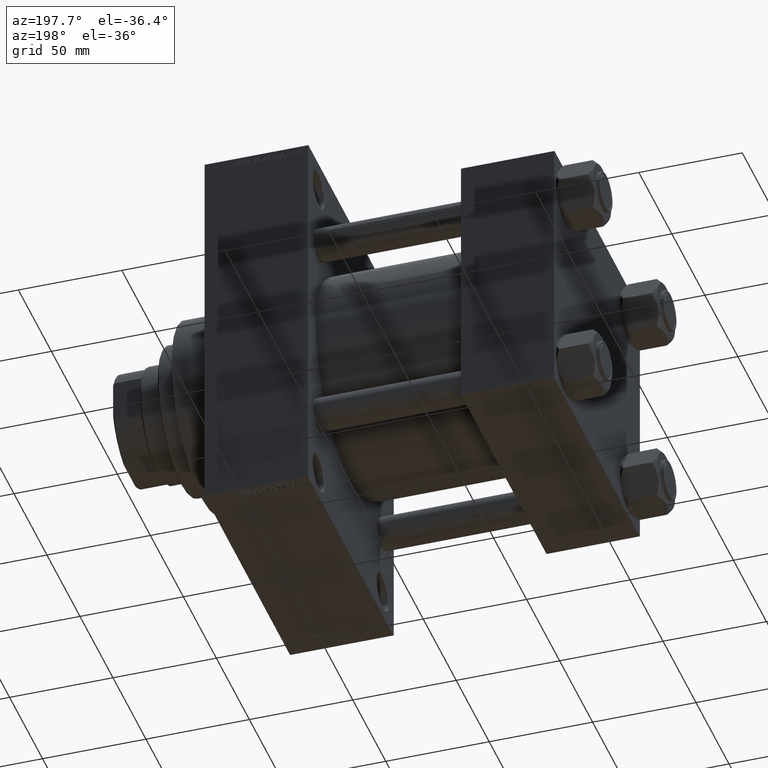
[diagram: clean part render]
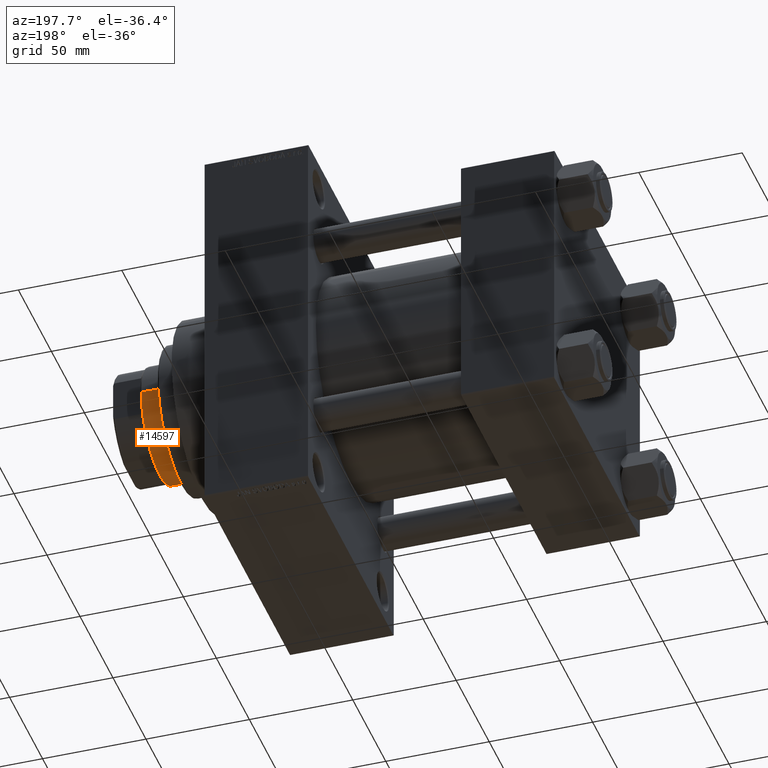
[diagram: same view with one face highlighted and labeled with its STEP entity id]
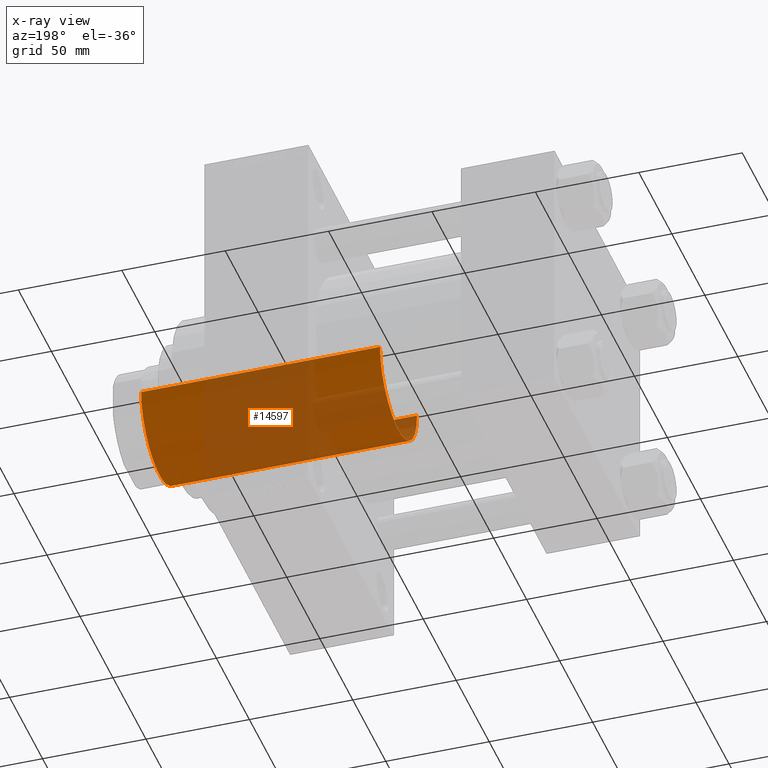
[diagram: x-ray of the same camera — body ghosted, the highlighted face saturated]
A machine part, auxiliary view. The second image highlights one B-rep face of the part: STEP entity #14597.
The next image is the same camera in x-ray: the body ghosted, the highlighted face saturated — about 61% of this face is hidden behind the body in this view.
In plain terms, the highlighted cylindrical surface (partial cylindrical patch) has radius 28 mm, axis along (-1, 0, 0).
Its self-contained STEP definition (entity closure, byte-faithful):
#2545 = CARTESIAN_POINT ( 'NONE',  ( 28.00000000000000000, 3.429011037612588487E-15, 51.00000000000000000 ) ) ;
#2812 = CIRCLE ( 'NONE', #8954, 28.00000000000000000 ) ;
#4372 = AXIS2_PLACEMENT_3D ( 'NONE', #38369, #27746, #20234 ) ;
#4784 = CARTESIAN_POINT ( 'NONE',  ( -28.00000000000000000, 0.000000000000000000, 166.5000000000000853 ) ) ;
#8100 = CARTESIAN_POINT ( 'NONE',  ( 0.000000000000000000, 0.000000000000000000, 167.0000000000000000 ) ) ;
#8954 = AXIS2_PLACEMENT_3D ( 'NONE', #27843, #42596, #19872 ) ;
#9063 = FACE_OUTER_BOUND ( 'NONE', #29530, .T. ) ;
#9126 = AXIS2_PLACEMENT_3D ( 'NONE', #8100, #38520, #22815 ) ;
#9593 = EDGE_CURVE ( 'NONE', #23463, #23291, #17434, .T. ) ;
#11422 = CARTESIAN_POINT ( 'NONE',  ( 28.00000000000000000, 3.429011037612588487E-15, 166.5000000000000853 ) ) ;
#13859 = ORIENTED_EDGE ( 'NONE', *, *, #30599, .F. ) ;
#14597 = ADVANCED_FACE ( 'NONE', ( #9063 ), #23784, .T. ) ;
#16960 = DIRECTION ( 'NONE',  ( -0.000000000000000000, -0.000000000000000000, -1.000000000000000000 ) ) ;
#17257 = DIRECTION ( 'NONE',  ( -0.000000000000000000, -0.000000000000000000, -1.000000000000000000 ) ) ;
#17434 = LINE ( 'NONE', #39422, #22823 ) ;
#19150 = VERTEX_POINT ( 'NONE', #38947 ) ;
#19872 = DIRECTION ( 'NONE',  ( 1.000000000000000000, 0.000000000000000000, 0.000000000000000000 ) ) ;
#20234 = DIRECTION ( 'NONE',  ( 1.000000000000000000, 0.000000000000000000, 0.000000000000000000 ) ) ;
#22815 = DIRECTION ( 'NONE',  ( -1.000000000000000000, 0.000000000000000000, 0.000000000000000000 ) ) ;
#22823 = VECTOR ( 'NONE', #16960, 1000.000000000000000 ) ;
#22939 = VERTEX_POINT ( 'NONE', #4784 ) ;
#23291 = VERTEX_POINT ( 'NONE', #2545 ) ;
#23463 = VERTEX_POINT ( 'NONE', #11422 ) ;
#23784 = CYLINDRICAL_SURFACE ( 'NONE', #9126, 28.00000000000000000 ) ;
#26137 = ORIENTED_EDGE ( 'NONE', *, *, #38916, .T. ) ;
#27746 = DIRECTION ( 'NONE',  ( 0.000000000000000000, 0.000000000000000000, 1.000000000000000000 ) ) ;
#27843 = CARTESIAN_POINT ( 'NONE',  ( 0.000000000000000000, 0.000000000000000000, 166.5000000000000853 ) ) ;
#29530 = EDGE_LOOP ( 'NONE', ( #26137, #39305, #35360, #13859 ) ) ;
#30599 = EDGE_CURVE ( 'NONE', #22939, #19150, #43360, .T. ) ;
#34449 = CIRCLE ( 'NONE', #4372, 28.00000000000000000 ) ;
#35360 = ORIENTED_EDGE ( 'NONE', *, *, #40220, .T. ) ;
#35612 = CARTESIAN_POINT ( 'NONE',  ( -28.00000000000000000, 0.000000000000000000, 167.0000000000000000 ) ) ;
#38369 = CARTESIAN_POINT ( 'NONE',  ( 0.000000000000000000, 0.000000000000000000, 51.00000000000000000 ) ) ;
#38520 = DIRECTION ( 'NONE',  ( -0.000000000000000000, -0.000000000000000000, -1.000000000000000000 ) ) ;
#38916 = EDGE_CURVE ( 'NONE', #22939, #23463, #2812, .T. ) ;
#38947 = CARTESIAN_POINT ( 'NONE',  ( -28.00000000000000000, 0.000000000000000000, 51.00000000000000000 ) ) ;
#39305 = ORIENTED_EDGE ( 'NONE', *, *, #9593, .T. ) ;
#39422 = CARTESIAN_POINT ( 'NONE',  ( 28.00000000000000000, 3.429011037612588487E-15, 167.0000000000000000 ) ) ;
#40220 = EDGE_CURVE ( 'NONE', #23291, #19150, #34449, .T. ) ;
#42596 = DIRECTION ( 'NONE',  ( 0.000000000000000000, 0.000000000000000000, -1.000000000000000000 ) ) ;
#43360 = LINE ( 'NONE', #35612, #44295 ) ;
#44295 = VECTOR ( 'NONE', #17257, 1000.000000000000000 ) ;